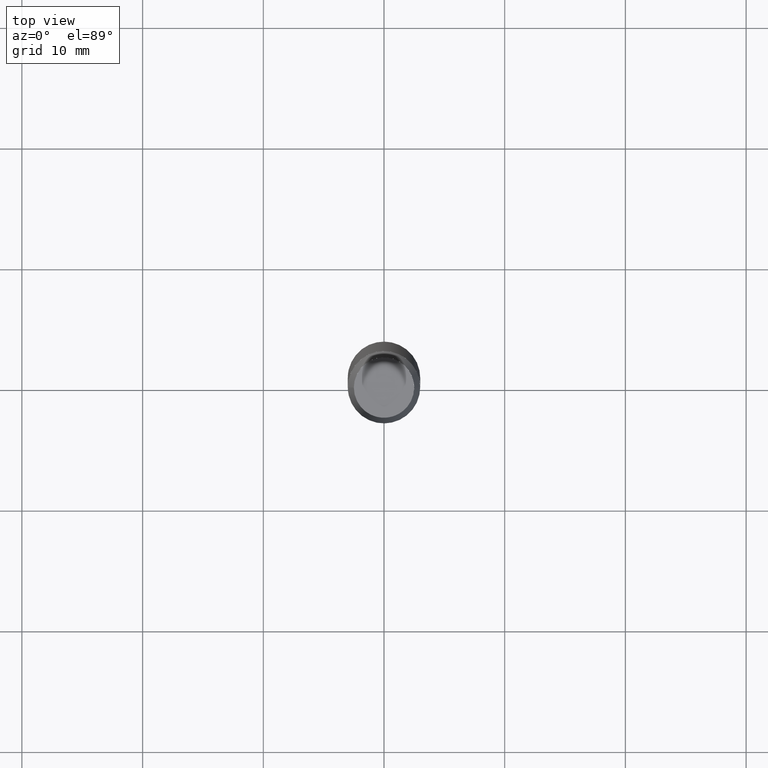
[diagram: clean part render]
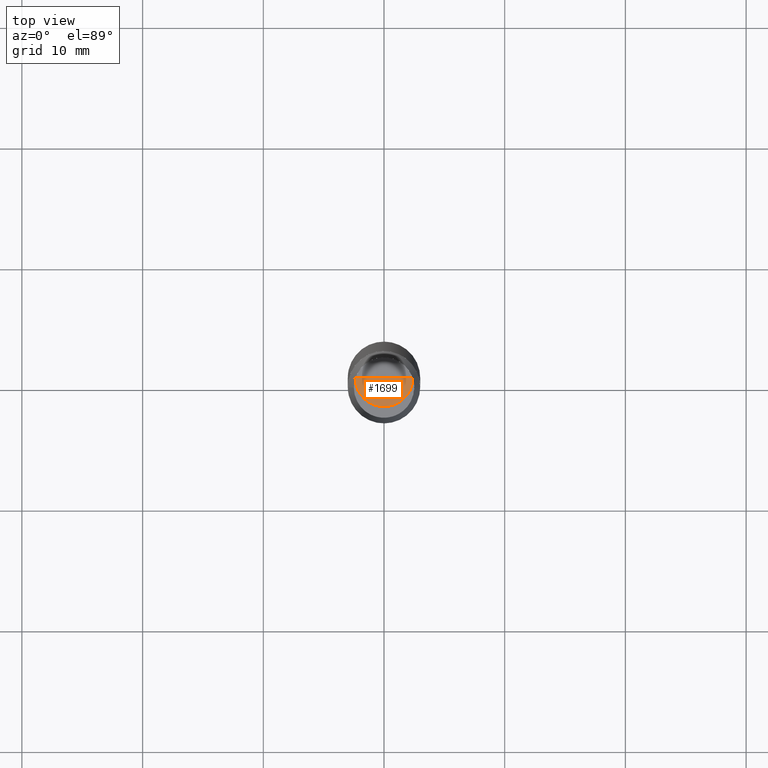
[diagram: same view with one face highlighted and labeled with its STEP entity id]
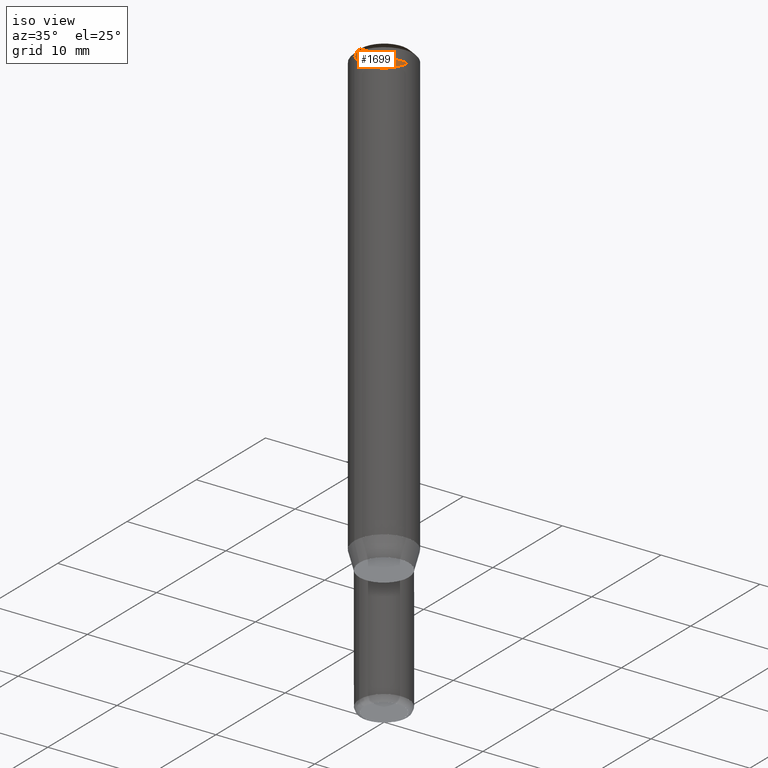
[diagram: same view with one face highlighted and labeled with its STEP entity id]
A machine part, top view. The second image highlights one B-rep face of the part: STEP entity #1699.
A second angle (iso view) of the same face is appended — the face is thin or edge-on in the first view.
In plain terms, the highlighted face is a freeform B-spline surface patch.
Its self-contained STEP definition (entity closure, byte-faithful):
#1344=CARTESIAN_POINT('',(2.4,0.0,45.133974596216));
#1348=CARTESIAN_POINT('',(-2.4,0.0,45.133974596216));
#1349=CARTESIAN_POINT('',(0.0,0.0,45.133974596216));
#1356=CARTESIAN_POINT('',(-2.4,-2.4,45.133974596216));
#1357=CARTESIAN_POINT('',(0.0,-2.4,45.133974596216));
#1358=CARTESIAN_POINT('',(2.4,-2.4,45.133974596216));
#1684=(
BOUNDED_SURFACE()
B_SPLINE_SURFACE(1,2,(
(#1348,#1356,#1357,#1358,#1344),
(#1349,#1349,#1349,#1349,#1349)
), .UNSPECIFIED.,.F.,.F.,.F.)
B_SPLINE_SURFACE_WITH_KNOTS((2,2),(3,2,3),(
0.0,1.0),(
0.0,0.5,1.0), .UNSPECIFIED.)
GEOMETRIC_REPRESENTATION_ITEM()
RATIONAL_B_SPLINE_SURFACE(((1.0,0.707106781187,1.0,0.707106781187,1.0),
(1.0,0.707106781187,1.0,0.707106781187,1.0)
))
REPRESENTATION_ITEM('')
SURFACE()
);
#1685=(
BOUNDED_CURVE()
B_SPLINE_CURVE(1,(#1349,#1344),.UNSPECIFIED.,.F.,.F.)
B_SPLINE_CURVE_WITH_KNOTS((2,2),
(0.0,1.0),.UNSPECIFIED.)
CURVE()
GEOMETRIC_REPRESENTATION_ITEM()
RATIONAL_B_SPLINE_CURVE((1.0,1.0))
REPRESENTATION_ITEM('')
);
#1686=(
BOUNDED_CURVE()
B_SPLINE_CURVE(2,(#1344,#1358,#1357,#1356,#1348),.UNSPECIFIED.,.F.,.F.)
B_SPLINE_CURVE_WITH_KNOTS((3,2,3),
(0.0,0.5,1.0),.UNSPECIFIED.)
CURVE()
GEOMETRIC_REPRESENTATION_ITEM()
RATIONAL_B_SPLINE_CURVE((1.0,0.707106781187,1.0,0.707106781187,1.0))
REPRESENTATION_ITEM('')
);
#1687=(
BOUNDED_CURVE()
B_SPLINE_CURVE(1,(#1348,#1349),.UNSPECIFIED.,.F.,.F.)
B_SPLINE_CURVE_WITH_KNOTS((2,2),
(0.0,1.0),.UNSPECIFIED.)
CURVE()
GEOMETRIC_REPRESENTATION_ITEM()
RATIONAL_B_SPLINE_CURVE((1.0,1.0))
REPRESENTATION_ITEM('')
);
#1688=VERTEX_POINT('',#1344);
#1689=VERTEX_POINT('',#1348);
#1690=VERTEX_POINT('',#1349);
#1691=EDGE_CURVE('',#1690,#1688,#1685,.T.);
#1692=EDGE_CURVE('',#1688,#1689,#1686,.T.);
#1693=EDGE_CURVE('',#1689,#1690,#1687,.T.);
#1694=ORIENTED_EDGE('',*,*,#1691,.T.);
#1695=ORIENTED_EDGE('',*,*,#1692,.T.);
#1696=ORIENTED_EDGE('',*,*,#1693,.T.);
#1697=EDGE_LOOP('',(#1694,#1695,#1696));
#1698=FACE_OUTER_BOUND('',#1697,.T.);
#1699=ADVANCED_FACE('',(#1698),#1684,.T.);